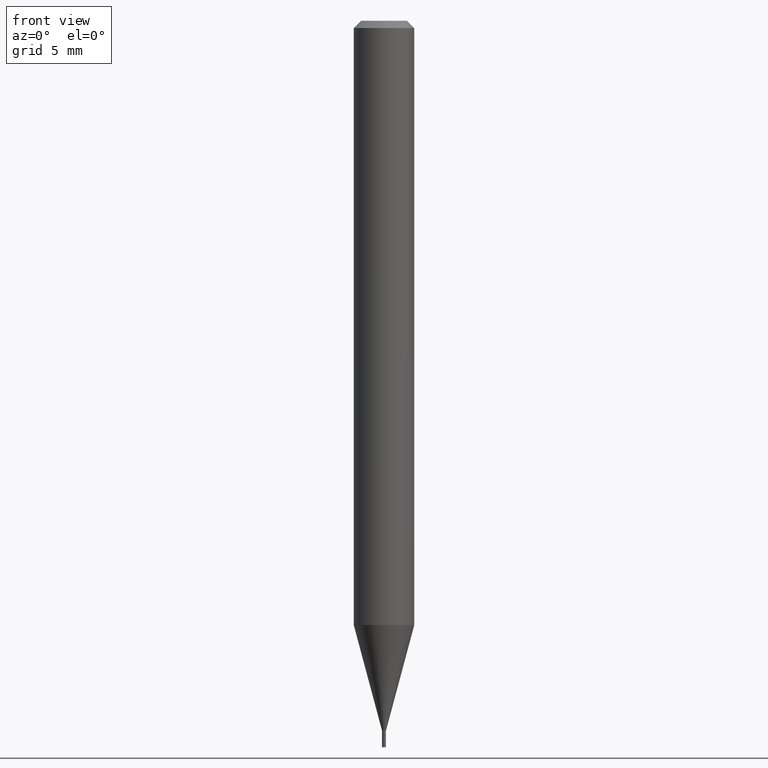
[diagram: clean part render]
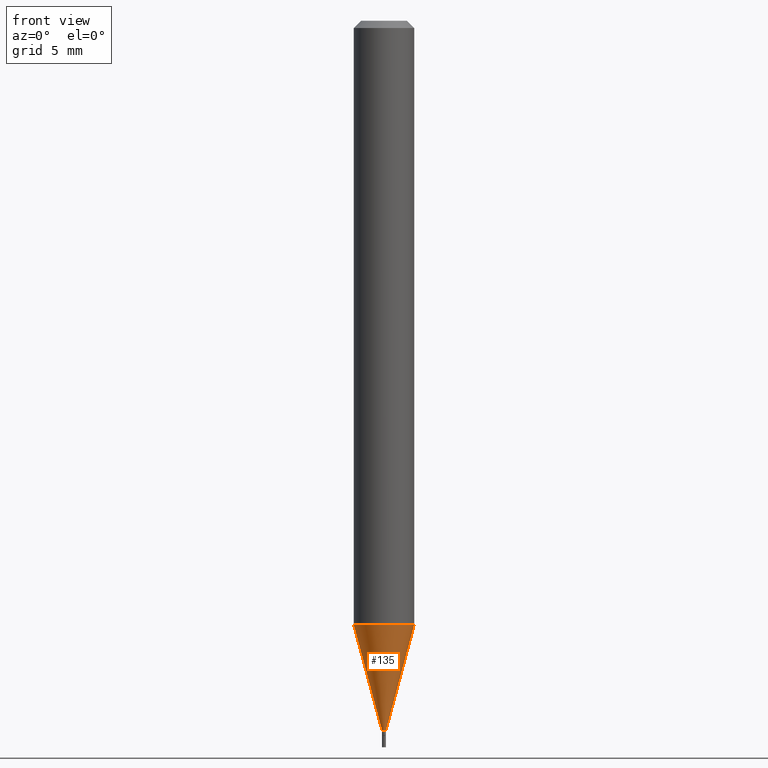
[diagram: same view with one face highlighted and labeled with its STEP entity id]
A machine part, front view. The second image highlights one B-rep face of the part: STEP entity #135.
In plain terms, the highlighted conical surface has half-angle 15 deg.
Its self-contained STEP definition (entity closure, byte-faithful):
#52 = EDGE_CURVE ( 'NONE', #179, #205, #263, .T. ) ;
#59 = AXIS2_PLACEMENT_3D ( 'NONE', #354, #314, #242 ) ;
#74 = ORIENTED_EDGE ( 'NONE', *, *, #52, .T. ) ;
#90 = ORIENTED_EDGE ( 'NONE', *, *, #267, .T. ) ;
#135 = ADVANCED_FACE ( 'NONE', ( #388 ), #369, .T. ) ;
#138 = AXIS2_PLACEMENT_3D ( 'NONE', #431, #351, #281 ) ;
#179 = VERTEX_POINT ( 'NONE', #394 ) ;
#205 = VERTEX_POINT ( 'NONE', #356 ) ;
#216 = DIRECTION ( 'NONE',  ( 0.2588190451025211836, 1.565188264969622559E-15, 0.9659258262890679791 ) ) ;
#241 = ORIENTED_EDGE ( 'NONE', *, *, #391, .F. ) ;
#242 = DIRECTION ( 'NONE',  ( 1.000000000000000000, -6.982962677686225690E-15, 0.000000000000000000 ) ) ;
#246 = CARTESIAN_POINT ( 'NONE',  ( -0.003999999999999922021, -4.501117399909262592E-15, -1.466000000000000192 ) ) ;
#257 = CARTESIAN_POINT ( 'NONE',  ( -0.06250000000000000000, -3.912144866504878015E-15, -1.247675027757221056 ) ) ;
#263 = LINE ( 'NONE', #451, #427 ) ;
#267 = EDGE_CURVE ( 'NONE', #276, #179, #383, .T. ) ;
#276 = VERTEX_POINT ( 'NONE', #246 ) ;
#281 = DIRECTION ( 'NONE',  ( 1.000000000000000000, -6.982962677686225690E-15, 0.000000000000000000 ) ) ;
#305 = DIRECTION ( 'NONE',  ( -0.2588190451025211836, 5.211531920934547886E-15, 0.9659258262890679791 ) ) ;
#306 = EDGE_CURVE ( 'NONE', #276, #430, #360, .T. ) ;
#314 = DIRECTION ( 'NONE',  ( -2.445468806185136597E-29, 3.491481338843145583E-15, 1.000000000000000000 ) ) ;
#345 = CIRCLE ( 'NONE', #450, 0.06250000000000000000 ) ;
#351 = DIRECTION ( 'NONE',  ( -2.445468806185136597E-29, 3.491481338843145583E-15, 1.000000000000000000 ) ) ;
#354 = CARTESIAN_POINT ( 'NONE',  ( 3.585057269867410650E-29, -5.118511642744051990E-15, -1.466000000000000192 ) ) ;
#356 = CARTESIAN_POINT ( 'NONE',  ( 0.06250000000000000000, -4.792669243710331512E-15, -1.247675027757221056 ) ) ;
#360 = LINE ( 'NONE', #390, #456 ) ;
#365 = DIRECTION ( 'NONE',  ( -2.445468806185136597E-29, 3.491481338843145583E-15, 1.000000000000000000 ) ) ;
#366 = ORIENTED_EDGE ( 'NONE', *, *, #306, .F. ) ;
#369 = CONICAL_SURFACE ( 'NONE', #59, 0.003999999999999922021, 0.2617993877991499074 ) ;
#373 = DIRECTION ( 'NONE',  ( 1.000000000000000000, -6.982962677686270655E-15, 0.000000000000000000 ) ) ;
#380 = EDGE_LOOP ( 'NONE', ( #366, #90, #74, #241 ) ) ;
#383 = CIRCLE ( 'NONE', #138, 0.003999999999999922021 ) ;
#388 = FACE_OUTER_BOUND ( 'NONE', #380, .T. ) ;
#390 = CARTESIAN_POINT ( 'NONE',  ( -0.003999999999999922021, -5.090089933313648746E-15, -1.466000000000000192 ) ) ;
#391 = EDGE_CURVE ( 'NONE', #430, #205, #345, .T. ) ;
#394 = CARTESIAN_POINT ( 'NONE',  ( 0.003999999999999922021, -5.146443493454796047E-15, -1.466000000000000192 ) ) ;
#406 = CARTESIAN_POINT ( 'NONE',  ( 3.051150360636458226E-29, -4.356234076354940631E-15, -1.247675027757221056 ) ) ;
#427 = VECTOR ( 'NONE', #216, 39.37007874015748854 ) ;
#430 = VERTEX_POINT ( 'NONE', #257 ) ;
#431 = CARTESIAN_POINT ( 'NONE',  ( 3.585057269867410650E-29, -5.118511642744051990E-15, -1.466000000000000192 ) ) ;
#450 = AXIS2_PLACEMENT_3D ( 'NONE', #406, #365, #373 ) ;
#451 = CARTESIAN_POINT ( 'NONE',  ( 0.003999999999999922021, -5.146443493454796047E-15, -1.466000000000000192 ) ) ;
#456 = VECTOR ( 'NONE', #305, 39.37007874015748854 ) ;